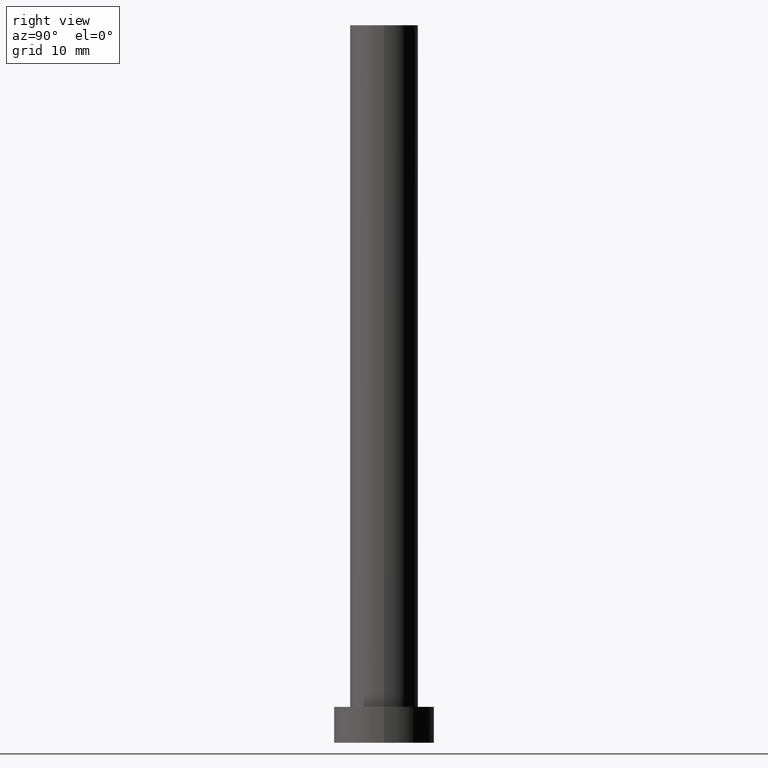
[diagram: clean part render]
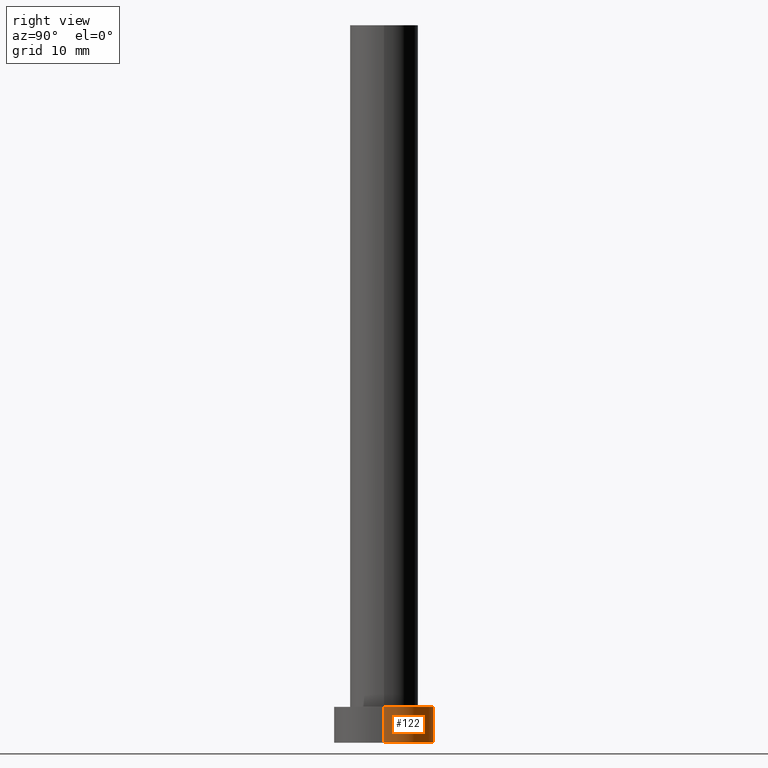
[diagram: same view with one face highlighted and labeled with its STEP entity id]
A machine part, right view. The second image highlights one B-rep face of the part: STEP entity #122.
In plain terms, the highlighted cylindrical surface (partial cylindrical patch) has radius 7 mm, axis along (-0, -0, -1).
Its self-contained STEP definition (entity closure, byte-faithful):
#4 = VERTEX_POINT ( 'NONE', #152 ) ;
#8 = EDGE_CURVE ( 'NONE', #106, #131, #111, .T. ) ;
#10 = ORIENTED_EDGE ( 'NONE', *, *, #8, .T. ) ;
#13 = DIRECTION ( 'NONE',  ( -0.000000000000000000, -0.000000000000000000, -1.000000000000000000 ) ) ;
#19 = CYLINDRICAL_SURFACE ( 'NONE', #133, 7.000000000000000000 ) ;
#30 = VECTOR ( 'NONE', #84, 1000.000000000000000 ) ;
#60 = ORIENTED_EDGE ( 'NONE', *, *, #166, .T. ) ;
#61 = CARTESIAN_POINT ( 'NONE',  ( -7.000000000000000000, 0.000000000000000000, 5.000000000000000000 ) ) ;
#72 = CIRCLE ( 'NONE', #241, 7.000000000000000000 ) ;
#74 = EDGE_CURVE ( 'NONE', #106, #136, #72, .T. ) ;
#84 = DIRECTION ( 'NONE',  ( -0.000000000000000000, -0.000000000000000000, -1.000000000000000000 ) ) ;
#86 = VECTOR ( 'NONE', #13, 1000.000000000000000 ) ;
#91 = DIRECTION ( 'NONE',  ( 0.000000000000000000, 0.000000000000000000, 1.000000000000000000 ) ) ;
#92 = CARTESIAN_POINT ( 'NONE',  ( 0.000000000000000000, 0.000000000000000000, 5.000000000000000000 ) ) ;
#97 = CARTESIAN_POINT ( 'NONE',  ( 7.000000000000000000, 8.572527594031473190E-16, 0.000000000000000000 ) ) ;
#101 = DIRECTION ( 'NONE',  ( -0.000000000000000000, -0.000000000000000000, -1.000000000000000000 ) ) ;
#106 = VERTEX_POINT ( 'NONE', #168 ) ;
#111 = LINE ( 'NONE', #184, #86 ) ;
#119 = DIRECTION ( 'NONE',  ( 0.000000000000000000, 0.000000000000000000, 1.000000000000000000 ) ) ;
#120 = CARTESIAN_POINT ( 'NONE',  ( 0.000000000000000000, 0.000000000000000000, 0.000000000000000000 ) ) ;
#122 = ADVANCED_FACE ( 'NONE', ( #177 ), #19, .T. ) ;
#131 = VERTEX_POINT ( 'NONE', #97 ) ;
#133 = AXIS2_PLACEMENT_3D ( 'NONE', #155, #101, #229 ) ;
#134 = CIRCLE ( 'NONE', #226, 7.000000000000000000 ) ;
#136 = VERTEX_POINT ( 'NONE', #61 ) ;
#152 = CARTESIAN_POINT ( 'NONE',  ( -7.000000000000000000, 0.000000000000000000, 0.000000000000000000 ) ) ;
#155 = CARTESIAN_POINT ( 'NONE',  ( 0.000000000000000000, 0.000000000000000000, 5.000000000000000000 ) ) ;
#156 = CARTESIAN_POINT ( 'NONE',  ( -7.000000000000000000, 0.000000000000000000, 5.000000000000000000 ) ) ;
#166 = EDGE_CURVE ( 'NONE', #131, #4, #134, .T. ) ;
#168 = CARTESIAN_POINT ( 'NONE',  ( 7.000000000000000000, 8.572527594031473190E-16, 5.000000000000000000 ) ) ;
#177 = FACE_OUTER_BOUND ( 'NONE', #245, .T. ) ;
#183 = DIRECTION ( 'NONE',  ( 1.000000000000000000, 0.000000000000000000, 0.000000000000000000 ) ) ;
#184 = CARTESIAN_POINT ( 'NONE',  ( 7.000000000000000000, 8.572527594031473190E-16, 5.000000000000000000 ) ) ;
#189 = DIRECTION ( 'NONE',  ( 1.000000000000000000, 0.000000000000000000, 0.000000000000000000 ) ) ;
#204 = ORIENTED_EDGE ( 'NONE', *, *, #74, .F. ) ;
#225 = EDGE_CURVE ( 'NONE', #136, #4, #235, .T. ) ;
#226 = AXIS2_PLACEMENT_3D ( 'NONE', #120, #119, #189 ) ;
#229 = DIRECTION ( 'NONE',  ( -1.000000000000000000, 0.000000000000000000, 0.000000000000000000 ) ) ;
#235 = LINE ( 'NONE', #156, #30 ) ;
#241 = AXIS2_PLACEMENT_3D ( 'NONE', #92, #91, #183 ) ;
#245 = EDGE_LOOP ( 'NONE', ( #204, #10, #60, #248 ) ) ;
#248 = ORIENTED_EDGE ( 'NONE', *, *, #225, .F. ) ;